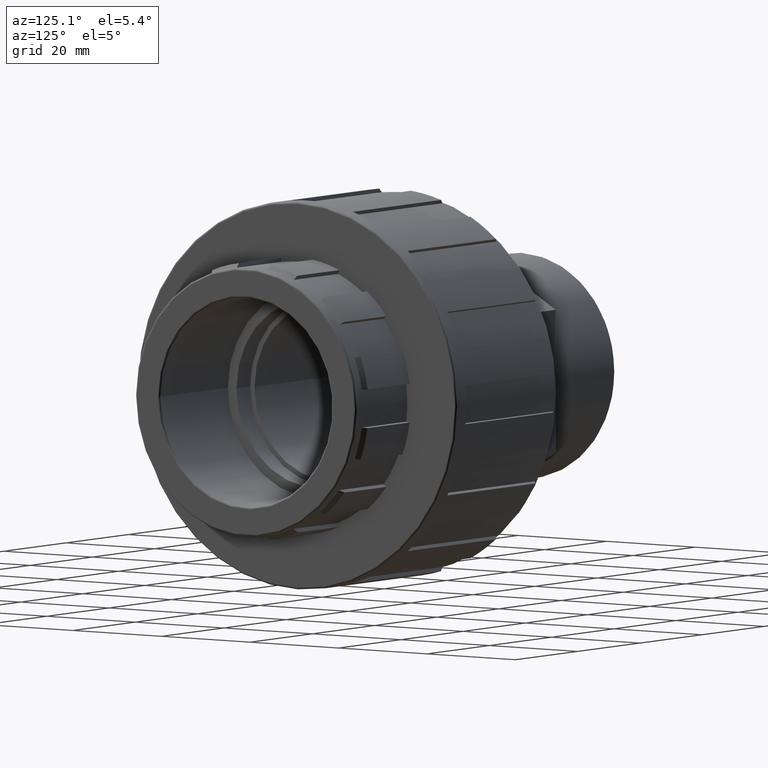
[diagram: clean part render]
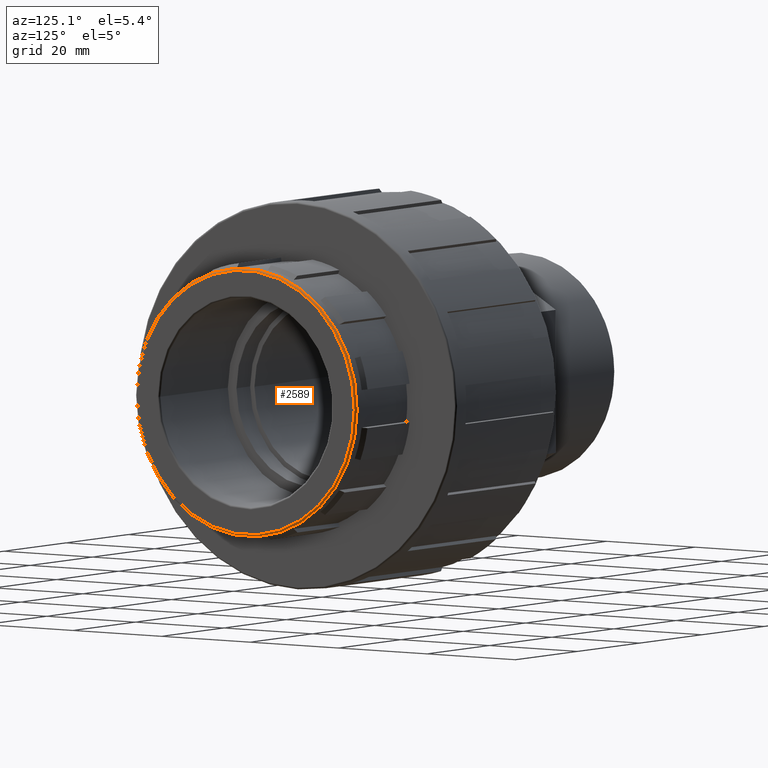
[diagram: same view with one face highlighted and labeled with its STEP entity id]
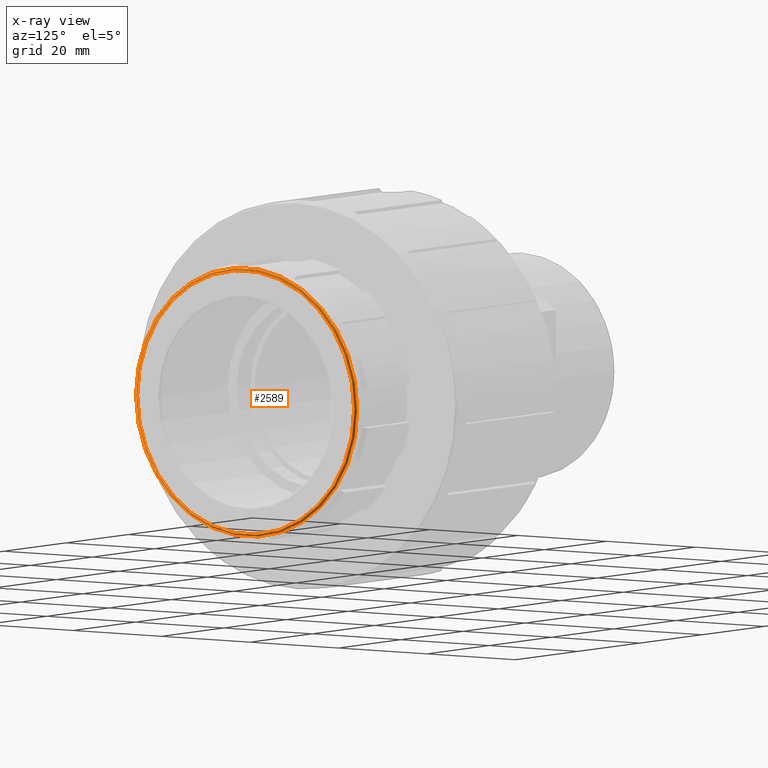
[diagram: x-ray of the same camera — body ghosted, the highlighted face saturated]
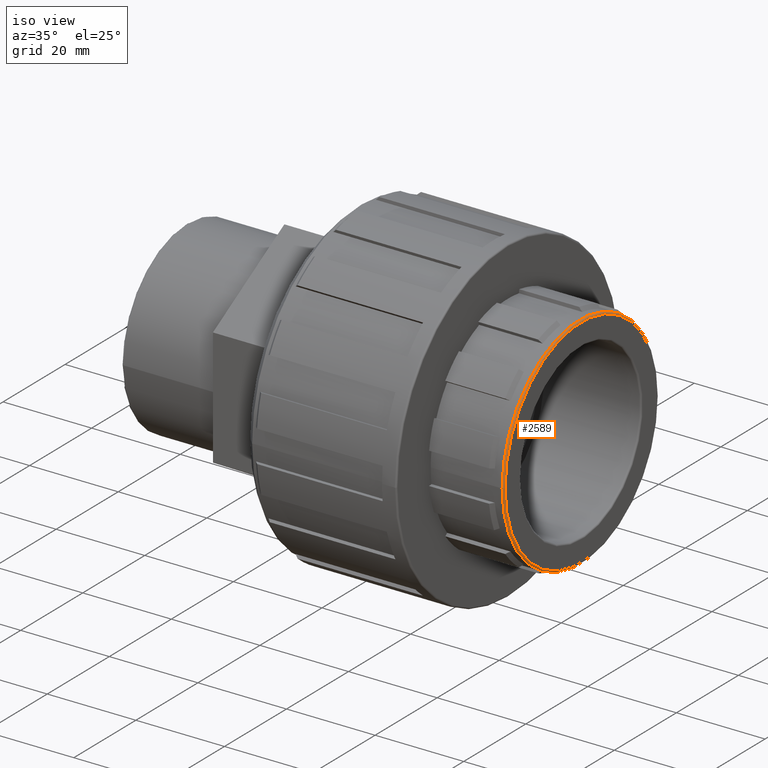
[diagram: same view with one face highlighted and labeled with its STEP entity id]
A machine part, auxiliary view. The second image highlights one B-rep face of the part: STEP entity #2589.
The next image is the same camera in x-ray: the body ghosted, the highlighted face saturated — about 0% of this face is hidden behind the body in this view.
A second angle (iso view) of the same face is appended — the face is thin or edge-on in the first view.
In plain terms, the highlighted toroidal blend (fillet) surface has major radius 24.5398 mm and minor (blend) radius 0.3895 mm.
Its self-contained STEP definition (entity closure, byte-faithful):
#17=TOROIDAL_SURFACE('',#2848,24.53976,0.38952);
#55=FACE_BOUND('',#490,.T.);
#206=CIRCLE('',#2845,24.53976);
#208=CIRCLE('',#2849,24.92928);
#343=FACE_OUTER_BOUND('',#489,.T.);
#489=EDGE_LOOP('',(#2218));
#490=EDGE_LOOP('',(#2219));
#1247=VERTEX_POINT('',#4381);
#1249=VERTEX_POINT('',#4387);
#1617=EDGE_CURVE('',#1247,#1247,#206,.T.);
#1619=EDGE_CURVE('',#1249,#1249,#208,.T.);
#2218=ORIENTED_EDGE('',*,*,#1617,.T.);
#2219=ORIENTED_EDGE('',*,*,#1619,.T.);
#2589=ADVANCED_FACE('',(#343,#55),#17,.T.);
#2845=AXIS2_PLACEMENT_3D('',#4382,#3592,#3593);
#2848=AXIS2_PLACEMENT_3D('',#4386,#3598,#3599);
#2849=AXIS2_PLACEMENT_3D('',#4388,#3600,#3601);
#3592=DIRECTION('center_axis',(-1.,-1.83697019872103E-16,0.));
#3593=DIRECTION('ref_axis',(-1.83697019872103E-16,1.,6.12323399573677E-17));
#3598=DIRECTION('center_axis',(-1.,-1.83697019872103E-16,0.));
#3599=DIRECTION('ref_axis',(0.,0.,1.));
#3600=DIRECTION('center_axis',(1.,1.83697019872103E-16,0.));
#3601=DIRECTION('ref_axis',(-1.83706467919602E-16,1.,6.12323399573677E-17));
#4381=CARTESIAN_POINT('',(44.5,-24.53976,1.50262692679221E-15));
#4382=CARTESIAN_POINT('Origin',(44.5,1.63490347686172E-14,0.));
#4386=CARTESIAN_POINT('Origin',(44.11048,1.62774811054366E-14,0.));
#4387=CARTESIAN_POINT('',(44.11048,-24.92928,-4.57943444355722E-15));
#4388=CARTESIAN_POINT('Origin',(44.11048,1.62774811054366E-14,0.));